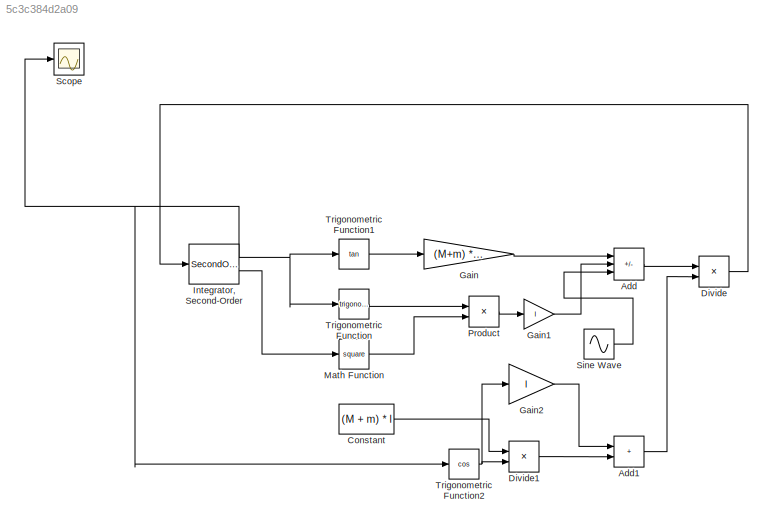
MODEL slx_5c3c384d2a09
KIND model
CONFIG AbsTol = auto
CONFIG EnableMultiTasking = off
CONFIG FixedStep = auto
CONFIG MaxStep = auto
CONFIG MinStep = auto
CONFIG RelTol = 1e-3
CONFIG SampleTimeConstraint = Unconstrained
CONFIG SolverName = VariableStepAuto
CONFIG StartTime = 0.0
CONFIG StopTime = 100.0
BLOCK [Sum] Add
  IconShape = rectangular
  Inputs = +--
  Ports = [3, 1]
BLOCK [Sum] Add1
  IconShape = rectangular
  Ports = [2, 1]
BLOCK [Constant] Constant
  Value = (M + m) * l
BLOCK [Product] Divide
  Inputs = */
  Ports = [2, 1]
BLOCK [Product] Divide1
  Inputs = */
  Ports = [2, 1]
BLOCK [Gain] Gain
  Gain = (M+m) * g
BLOCK [Gain] Gain1
  Gain = l
BLOCK [Gain] Gain2
  Gain = l
BLOCK [SecondOrderIntegrator] Integrator, Second-Order
  ICX = 0.01
  Ports = [1, 2]
BLOCK [Math] Math Function
  Operator = square
  Ports = [1, 1]
BLOCK [Product] Product
  Ports = [2, 1]
BLOCK [Scope] Scope
  Floating = off
  NumInputPorts = 1
  Ports = [1]
  ScopeSpecificationString = Simulink.scopes.TimeScopeBlockCfg('CurrentConfiguration', extmgr.ConfigurationSet(extmgr.Configuration('Core','General UI',true),extmgr.Configuration('Core','Source UI',true),extmgr.Configuration('Sources','WiredSimulink',true),extmgr.Configuration('Visuals','Time Domain',true,'SerializedDisplays',{struct('MinYLimReal','-206.52387','MaxYLimReal','36.74925','YLabelReal','','MinYLimMag',' 0.00000','...<+1387ch>
BLOCK [Sin] Sine Wave
  Amplitude = 0.3
  Ports = [0, 1]
  SampleTime = 0
BLOCK [Trigonometry] Trigonometric Function
  Ports = [1, 1]
BLOCK [Trigonometry] Trigonometric Function1
  Operator = tan
  Ports = [1, 1]
BLOCK [Trigonometry] Trigonometric Function2
  Operator = cos
  Ports = [1, 1]
LINE Add1:1 -> Divide:2
LINE Add:1 -> Divide:1
LINE Constant:1 -> Divide1:1
LINE Divide1:1 -> Add1:2
LINE Divide:1 -> Integrator, Second-Order:1
LINE Gain1:1 -> Add:2
LINE Gain2:1 -> Add1:1
LINE Gain:1 -> Add:1
NET Integrator, Second-Order:1 -> Scope:1, Trigonometric Function1:1, Trigonometric Function2:1, Trigonometric Function:1
LINE Integrator, Second-Order:2 -> Math Function:1
LINE Math Function:1 -> Product:2
LINE Product:1 -> Gain1:1
LINE Sine Wave:1 -> Add:3
LINE Trigonometric Function1:1 -> Gain:1
NET Trigonometric Function2:1 -> Divide1:2, Gain2:1
LINE Trigonometric Function:1 -> Product:1
note: NET lines group one-source signal fan-out (src -> all destinations, sorted); 1:1 wires keep LINE
